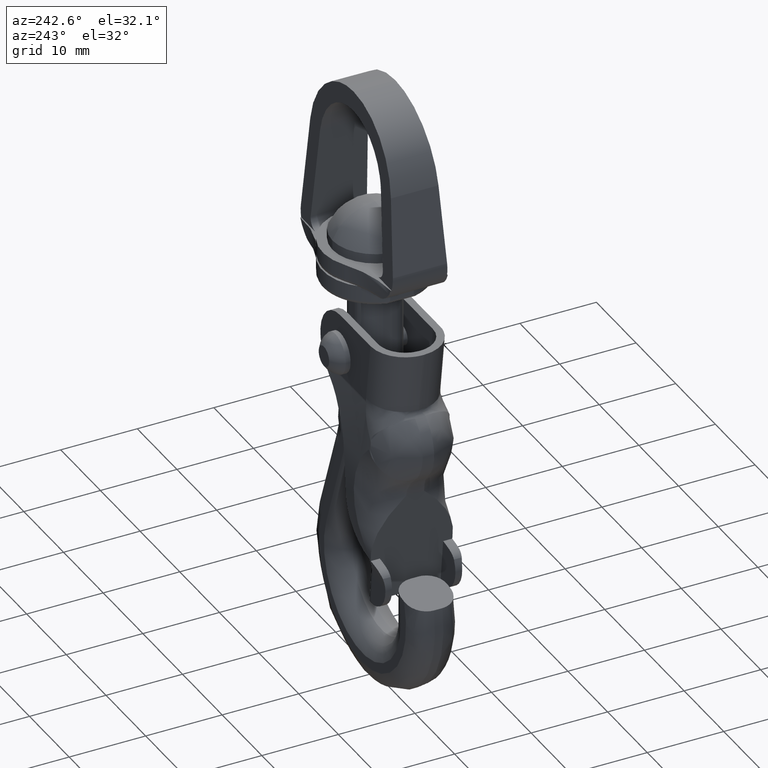
[diagram: clean part render]
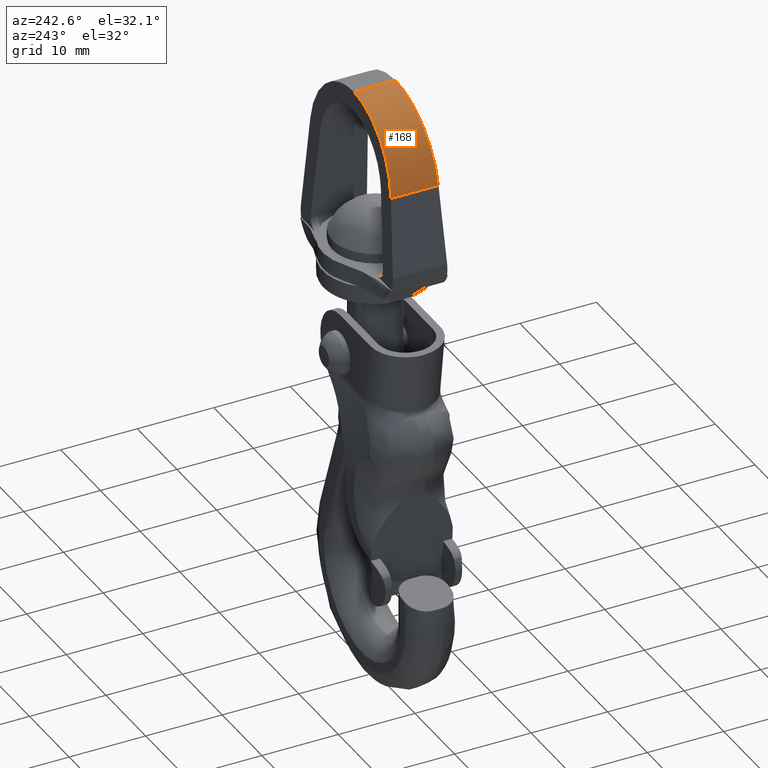
[diagram: same view with one face highlighted and labeled with its STEP entity id]
A machine part, auxiliary view. The second image highlights one B-rep face of the part: STEP entity #168.
In plain terms, the highlighted cylindrical surface (partial cylindrical patch) has radius 10.2221 mm, axis along (-0, -1, -0).
Its self-contained STEP definition (entity closure, byte-faithful):
#168=ADVANCED_FACE('',(#504),#503,.T.);
#503=CYLINDRICAL_SURFACE('',#2091,1.02221467506E+01);
#504=FACE_OUTER_BOUND('',#2092,.T.);
#2088=CARTESIAN_POINT('',(1.95026081822E-01,-9.96162754733E+02,1.54842201635E+01));
#2089=DIRECTION('',(-0.00000000000E+00,-1.00000000000E+00,-0.00000000000E+00));
#2090=DIRECTION('',(-0.00000000000E+00,0.00000000000E+00,-1.00000000000E+00));
#2091=AXIS2_PLACEMENT_3D('',#2088,#2089,#2090);
#2092=EDGE_LOOP('',(#4105,#4106,#4107,#4108));
#4105=ORIENTED_EDGE('',*,*,#4916,.T.);
#4106=ORIENTED_EDGE('',*,*,#4899,.T.);
#4107=ORIENTED_EDGE('',*,*,#4923,.F.);
#4108=ORIENTED_EDGE('',*,*,#4908,.T.);
#4899=EDGE_CURVE('',#5686,#5679,#5687,.T.);
#4908=EDGE_CURVE('',#5748,#5741,#5749,.T.);
#4916=EDGE_CURVE('',#5741,#5686,#5801,.T.);
#4923=EDGE_CURVE('',#5748,#5679,#5843,.T.);
#5679=VERTEX_POINT('',#8400);
#5686=VERTEX_POINT('',#8404);
#5687=(BOUNDED_CURVE() B_SPLINE_CURVE(2,(#8405,#8406,#8407),.UNSPECIFIED.,.F.,.F.) B_SPLINE_CURVE_WITH_KNOTS((3,3),(3.14345399431E+00,4.58041978086E+00),.UNSPECIFIED.) CURVE() GEOMETRIC_REPRESENTATION_ITEM() RATIONAL_B_SPLINE_CURVE((1.00000000000E+00,7.52805220496E-01,1.00000000000E+00)) REPRESENTATION_ITEM('') );
#5741=VERTEX_POINT('',#8437);
#5748=VERTEX_POINT('',#8441);
#5749=(BOUNDED_CURVE() B_SPLINE_CURVE(2,(#8442,#8443,#8444),.UNSPECIFIED.,.F.,.F.) B_SPLINE_CURVE_WITH_KNOTS((3,3),(4.84435817991E+00,6.28132396646E+00),.UNSPECIFIED.) CURVE() GEOMETRIC_REPRESENTATION_ITEM() RATIONAL_B_SPLINE_CURVE((1.00000000000E+00,7.52805220496E-01,1.00000000000E+00)) REPRESENTATION_ITEM('') );
#5801=LINE('',#8474,#8475);
#5843=LINE('',#8502,#8503);
#8400=CARTESIAN_POINT('',(-9.93823599392E+00,3.10844591789E+00,1.68293164031E+01));
#8404=CARTESIAN_POINT('',(1.75999194772E-01,2.72402295171E+00,2.57063492063E+01));
#8405=CARTESIAN_POINT('',(1.75999194772E-01,2.72402295171E+00,2.57063492063E+01));
#8406=CARTESIAN_POINT('',(-8.76210088925E+00,2.72474341706E+00,2.56897123375E+01));
#8407=CARTESIAN_POINT('',(-9.93823599402E+00,3.10844591789E+00,1.68293164031E+01));
#8437=CARTESIAN_POINT('',(1.75999194772E-01,-2.72402295171E+00,2.57063492063E+01));
#8441=CARTESIAN_POINT('',(-9.93823599392E+00,-3.10844591789E+00,1.68293164031E+01));
#8442=CARTESIAN_POINT('',(-9.93823599402E+00,-3.10844591789E+00,1.68293164031E+01));
#8443=CARTESIAN_POINT('',(-8.76210088925E+00,-2.72474341706E+00,2.56897123375E+01));
#8444=CARTESIAN_POINT('',(1.75999194772E-01,-2.72402295171E+00,2.57063492063E+01));
#8474=CARTESIAN_POINT('',(1.75999194772E-01,-2.72402295171E+00,2.57063492063E+01));
#8475=VECTOR('',#8476,5.44804590343E+00);
#8476=DIRECTION('',(0.00000000000E+00,1.00000000000E+00,0.00000000000E+00));
#8502=CARTESIAN_POINT('',(-9.93823599392E+00,-3.10844591789E+00,1.68293164031E+01));
#8503=VECTOR('',#8504,6.21689183578E+00);
#8504=DIRECTION('',(0.00000000000E+00,1.00000000000E+00,0.00000000000E+00));